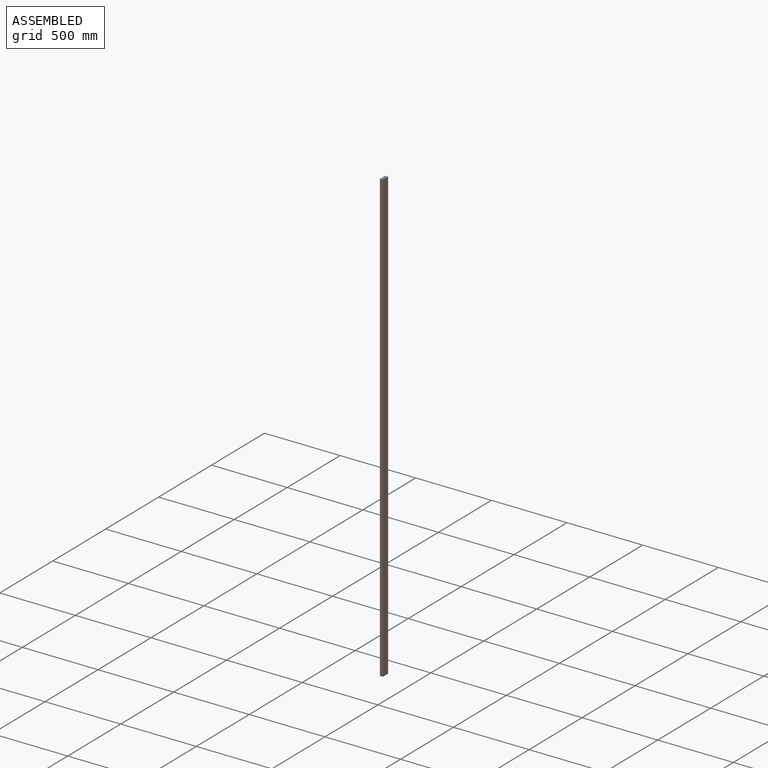
[diagram: assembled view]
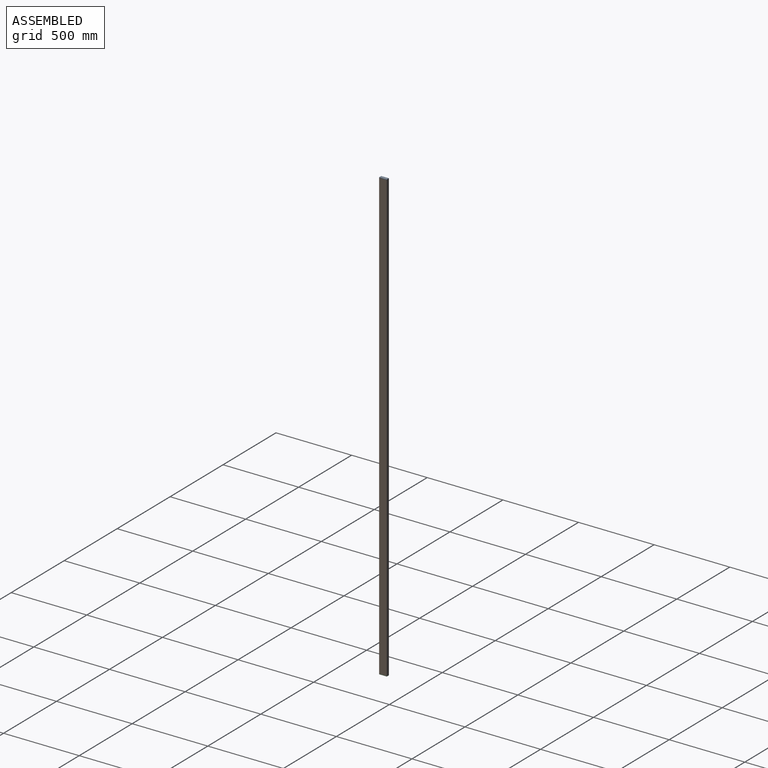
[diagram: assembled view, second angle]
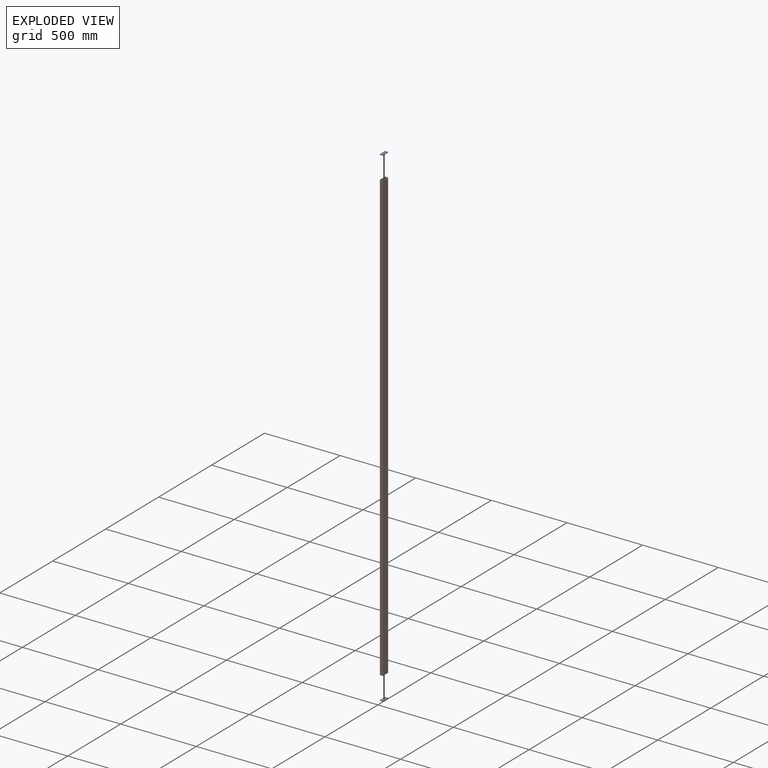
[diagram: exploded view]
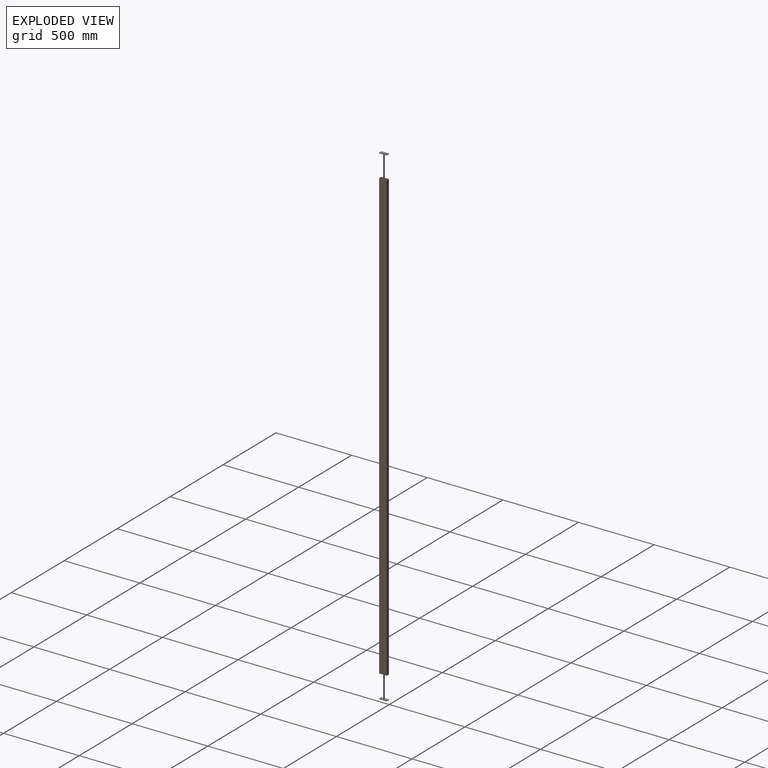
[diagram: exploded view, second angle]
ASSEMBLY  parts=3 mates=2
PART A: 6 faces, bbox 20x50x5 mm
  f0: plane 20x5mm, normal (0,-1,0), area 100mm2, adj f1,f2,f3,f4
  f1: plane 50x5mm, normal (1,0,0), area 250mm2, adj f0,f2,f4,f5
  f2: plane 50x20mm, normal (0,0,-1), area 1000mm2, adj f0,f1,f3,f5
  f3: plane 50x5mm, normal (-1,0,0), area 250mm2, adj f0,f2,f4,f5
  f4: plane 50x20mm, normal (0,0,1), area 1000mm2, adj f0,f1,f3,f5
  f5: plane 20x5mm, normal (0,1,0), area 100mm2, adj f1,f2,f3,f4
PART B: 10 faces, bbox 20x50x2960 mm
  f0: plane 2960x17mm, normal (0,-1,0), area 50320mm2, adj f1,f2,f4,f5
  f1: plane 2960x47mm, normal (-1,0,0), area 139120mm2, adj f0,f3,f4,f5
  f2: plane 2960x47mm, normal (1,0,0), area 139120mm2, adj f0,f3,f4,f5
  f3: plane 2960x17mm, normal (0,1,0), area 50320mm2, adj f1,f2,f4,f5
  f4: plane 50x20mm, normal (0,0,-1), area 201mm2, adj f0,f1,f2,f3,f6,f7,f8,f9
  f5: plane 50x20mm, normal (0,0,1), area 201mm2, adj f0,f1,f2,f3,f6,f7,f8,f9
  f6: plane 2960x20mm, normal (0,1,0), area 59200mm2, adj f4,f5,f7,f8
  f7: plane 2960x50mm, normal (1,0,0), area 148000mm2, adj f4,f5,f6,f9
  f8: plane 2960x50mm, normal (-1,0,0), area 148000mm2, adj f4,f5,f6,f9
  f9: plane 2960x20mm, normal (0,-1,0), area 59200mm2, adj f4,f5,f7,f8
PART C: same geometry as A
PLACE A t=(-2502.15,970.67,-535.44)mm
PLACE B t=(-2502.15,970.67,-535.44)mm fixed
PLACE C t=(-2502.15,970.67,-3500.44)mm
MATE fastened A.f2 <-> B.f5  axis (0,0,-1) through (3033.82,970.67,1274.53)mm
MATE fastened B.f4 <-> C.f4  axis (0,0,-1) through (3053.82,1020.67,-1685.47)mm
